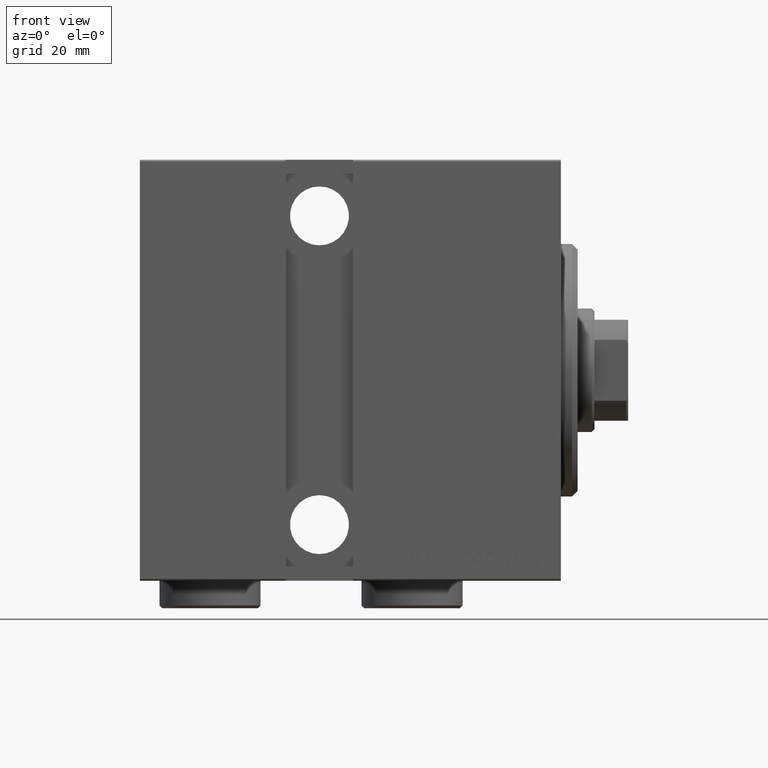
[diagram: clean part render]
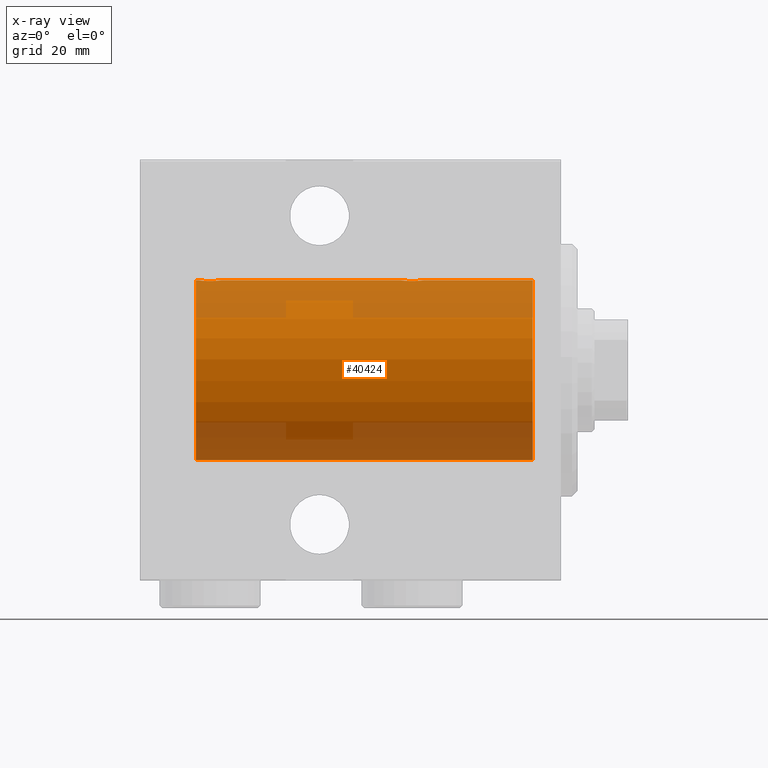
[diagram: x-ray — body ghosted, one internal face saturated and labeled with its STEP entity id]
A machine part, front view, then the same camera in x-ray: the body is ghosted and one INTERNAL B-rep face — a face not visible from any outside direction — is saturated and labeled: STEP entity #40424.
In plain terms, the highlighted cylindrical surface (partial cylindrical patch) has radius 16 mm, axis along (1, 0, -0).
Its self-contained STEP definition (entity closure, byte-faithful):
#151 = CARTESIAN_POINT ( 'NONE',  ( 24.60216273501104567, 0.6445079780200539954, 15.98747331501412461 ) ) ;
#580 = CARTESIAN_POINT ( 'NONE',  ( 27.50659181559580446, 1.747750603376297729, 15.90457341008072056 ) ) ;
#686 = CARTESIAN_POINT ( 'NONE',  ( 65.00000000000000000, 0.000000000000000000, 16.00000000000000000 ) ) ;
#848 = EDGE_CURVE ( 'NONE', #39148, #14516, #31698, .T. ) ;
#1040 = VERTEX_POINT ( 'NONE', #6923 ) ;
#1169 = CARTESIAN_POINT ( 'NONE',  ( 64.49999999999998579, 3.415560487804343463E-15, 16.00000000000000000 ) ) ;
#1614 = CARTESIAN_POINT ( 'NONE',  ( 63.50659181559576183, 1.747750603376297951, 15.90457341008072056 ) ) ;
#2096 = ORIENTED_EDGE ( 'NONE', *, *, #5139, .T. ) ;
#2278 = DIRECTION ( 'NONE',  ( -1.000000000000000000, 0.000000000000000000, 0.000000000000000000 ) ) ;
#2891 = EDGE_LOOP ( 'NONE', ( #19037, #23849, #5773, #2096, #36145, #14909, #41132, #15243 ) ) ;
#3045 = CARTESIAN_POINT ( 'NONE',  ( 24.90998471899876066, 1.220169175415113827, 15.95377581882983442 ) ) ;
#3907 = CARTESIAN_POINT ( 'NONE',  ( 28.43611326682063378, 0.5181437283162068086, 15.99211983514074298 ) ) ;
#4500 = CARTESIAN_POINT ( 'NONE',  ( 62.23748416992101085, 1.987008272775779627, 15.87616016863256618 ) ) ;
#4725 = CARTESIAN_POINT ( 'NONE',  ( 64.39758870055591444, 0.6452446332038123122, 15.98744362947834574 ) ) ;
#4854 = DIRECTION ( 'NONE',  ( -1.000000000000000000, -0.000000000000000000, -0.000000000000000000 ) ) ;
#4946 = CARTESIAN_POINT ( 'NONE',  ( 61.49688752964961935, 1.735145127817733002, 15.90580292899658410 ) ) ;
#5139 = EDGE_CURVE ( 'NONE', #28806, #25898, #39142, .T. ) ;
#5172 = CARTESIAN_POINT ( 'NONE',  ( 65.00000000000000000, 0.000000000000000000, 0.000000000000000000 ) ) ;
#5294 = DIRECTION ( 'NONE',  ( -1.000000000000000000, -0.000000000000000000, -0.000000000000000000 ) ) ;
#5456 = AXIS2_PLACEMENT_3D ( 'NONE', #5172, #2278, #11626 ) ;
#5578 = CARTESIAN_POINT ( 'NONE',  ( 65.00000000000000000, 0.000000000000000000, 16.00000000000000000 ) ) ;
#5773 = ORIENTED_EDGE ( 'NONE', *, *, #14887, .T. ) ;
#6387 = CARTESIAN_POINT ( 'NONE',  ( 25.98086902289887234, 1.935876924222074358, 15.88247600692093187 ) ) ;
#6608 = CARTESIAN_POINT ( 'NONE',  ( 25.28032342557723311, 1.590393755196000347, 15.92092783521424337 ) ) ;
#6817 = CARTESIAN_POINT ( 'NONE',  ( 28.49999999999998579, 0.1322838750249257511, 16.00000000000000000 ) ) ;
#6923 = CARTESIAN_POINT ( 'NONE',  ( 4.999999999999997335, 1.959434878635765131E-15, -16.00000000000000000 ) ) ;
#7038 = CARTESIAN_POINT ( 'NONE',  ( 24.76517329325045225, 1.003662148334361959, 15.96885838080210007 ) ) ;
#7143 = CIRCLE ( 'NONE', #32014, 16.00000000000000000 ) ;
#7399 = CARTESIAN_POINT ( 'NONE',  ( 60.56430947073870641, 0.5198215460038694280, 15.99206840425679310 ) ) ;
#8286 = CARTESIAN_POINT ( 'NONE',  ( 61.98086902289887945, 1.935876924222067252, 15.88247600692093187 ) ) ;
#8870 = CARTESIAN_POINT ( 'NONE',  ( 4.999999999999997335, 0.000000000000000000, 16.00000000000000000 ) ) ;
#10155 = CARTESIAN_POINT ( 'NONE',  ( 28.09051504852099512, 1.219564485341767091, 15.95382484008323409 ) ) ;
#10370 = CARTESIAN_POINT ( 'NONE',  ( 27.72956111739783580, 1.598790766515148620, 15.92099550861380131 ) ) ;
#10591 = CARTESIAN_POINT ( 'NONE',  ( 28.00610712468246177, 1.322357532253821910, 15.94553003295878391 ) ) ;
#10806 = CARTESIAN_POINT ( 'NONE',  ( 26.37014691649501685, 2.000047931387139322, 15.87450182760079187 ) ) ;
#10956 = CARTESIAN_POINT ( 'NONE',  ( 61.61382242942730159, 1.797743958659246966, 15.89876304682111652 ) ) ;
#11173 = CARTESIAN_POINT ( 'NONE',  ( 64.23568098498259360, 1.002241074716276881, 15.96895041604535770 ) ) ;
#11395 = CARTESIAN_POINT ( 'NONE',  ( 63.02531756459401890, 1.947280337074155376, 15.88137861827787489 ) ) ;
#11507 = EDGE_CURVE ( 'NONE', #16224, #16146, #14929, .T. ) ;
#11626 = DIRECTION ( 'NONE',  ( 0.000000000000000000, 0.000000000000000000, 1.000000000000000000 ) ) ;
#11627 = CARTESIAN_POINT ( 'NONE',  ( 64.29713414748218270, 0.8874076679346717400, 15.97583181162460697 ) ) ;
#12301 = VECTOR ( 'NONE', #19172, 1000.000000000000000 ) ;
#13274 = CARTESIAN_POINT ( 'NONE',  ( 28.39758870055591444, 0.6452446332038146437, 15.98744362947834574 ) ) ;
#13470 = EDGE_CURVE ( 'NONE', #14516, #1040, #24097, .T. ) ;
#13493 = CARTESIAN_POINT ( 'NONE',  ( 26.76191462762254858, 1.999903730784154066, 15.87451999516785861 ) ) ;
#13715 = CARTESIAN_POINT ( 'NONE',  ( 24.49999999999999289, 0.1305944228192297274, 15.99999999999999645 ) ) ;
#14511 = CARTESIAN_POINT ( 'NONE',  ( 64.49999999999997158, 0.1322838750249256956, 16.00000000000000000 ) ) ;
#14516 = VERTEX_POINT ( 'NONE', #40596 ) ;
#14887 = EDGE_CURVE ( 'NONE', #39148, #28806, #36048, .T. ) ;
#14909 = ORIENTED_EDGE ( 'NONE', *, *, #11507, .T. ) ;
#14929 = B_SPLINE_CURVE_WITH_KNOTS ( 'NONE', 3,
 ( #30186, #6817, #17059, #3907, #13274, #20411, #41041, #10155, #10591, #10370, #580, #16620, #13493, #10806, #36841, #6387, #27082, #26868, #24178, #6608, #19970, #17496, #3045, #7038, #37492, #151, #23750, #43722, #13715, #23965 ),
 .UNSPECIFIED., .F., .F.,
 ( 4, 2, 2, 2, 2, 2, 2, 2, 2, 2, 2, 2, 2, 2, 4 ),
 ( 1.745049934674283425E-18, 0.0003911894522871204737, 0.0007823789045742392126, 0.001173568356861357789, 0.001564757809148476691, 0.002347136713722706037, 0.003129515618296936034, 0.003520705070584051466, 0.003911894522871166464, 0.004303083975158282330, 0.004694273427445396461, 0.005085462879732512327, 0.005476652332019627326, 0.005867841784306743191, 0.006259031236593858190 ),
 .UNSPECIFIED. ) ;
#15196 = CARTESIAN_POINT ( 'NONE',  ( 63.72956111739784291, 1.598790766515136408, 15.92099550861381019 ) ) ;
#15243 = ORIENTED_EDGE ( 'NONE', *, *, #41150, .T. ) ;
#15764 = CARTESIAN_POINT ( 'NONE',  ( 65.00000000000000000, 0.000000000000000000, 16.00000000000000000 ) ) ;
#16146 = VERTEX_POINT ( 'NONE', #31282 ) ;
#16224 = VERTEX_POINT ( 'NONE', #27742 ) ;
#16620 = CARTESIAN_POINT ( 'NONE',  ( 27.02531756459403667, 1.947280337074160927, 15.88137861827786779 ) ) ;
#17059 = CARTESIAN_POINT ( 'NONE',  ( 28.48700524008413382, 0.2623312429553315561, 15.99836091803360105 ) ) ;
#17122 = CARTESIAN_POINT ( 'NONE',  ( 60.50000000000000711, -2.739595594696790848E-23, 16.00000000000000000 ) ) ;
#17496 = CARTESIAN_POINT ( 'NONE',  ( 24.99262839687570903, 1.321075116345881595, 15.94564302722883298 ) ) ;
#17811 = EDGE_CURVE ( 'NONE', #25898, #16224, #35091, .T. ) ;
#18087 = CARTESIAN_POINT ( 'NONE',  ( 61.28032342557722245, 1.590393755195991909, 15.92092783521423272 ) ) ;
#18220 = CARTESIAN_POINT ( 'NONE',  ( 65.00000000000000000, 0.000000000000000000, 16.00000000000000000 ) ) ;
#18540 = CARTESIAN_POINT ( 'NONE',  ( 60.90998471899877131, 1.220169175415108942, 15.95377581882983797 ) ) ;
#19037 = ORIENTED_EDGE ( 'NONE', *, *, #13470, .F. ) ;
#19172 = DIRECTION ( 'NONE',  ( -1.000000000000000000, -0.000000000000000000, -0.000000000000000000 ) ) ;
#19723 = DIRECTION ( 'NONE',  ( -1.000000000000000000, -0.000000000000000000, -0.000000000000000000 ) ) ;
#19970 = CARTESIAN_POINT ( 'NONE',  ( 25.17924175171067702, 1.507649250492130388, 15.92908549642226745 ) ) ;
#20411 = CARTESIAN_POINT ( 'NONE',  ( 28.29713414748220046, 0.8874076679346754037, 15.97583181162460697 ) ) ;
#20903 = LINE ( 'NONE', #18220, #22493 ) ;
#20988 = CARTESIAN_POINT ( 'NONE',  ( 60.50000000000000711, -2.739595594696790848E-23, 16.00000000000000000 ) ) ;
#21429 = CARTESIAN_POINT ( 'NONE',  ( 64.48700524008410184, 0.2623312429553320002, 15.99836091803360105 ) ) ;
#22256 = VECTOR ( 'NONE', #26998, 1000.000000000000000 ) ;
#22493 = VECTOR ( 'NONE', #4854, 1000.000000000000000 ) ;
#23054 = CYLINDRICAL_SURFACE ( 'NONE', #26322, 16.00000000000000000 ) ;
#23167 = DIRECTION ( 'NONE',  ( -1.000000000000000000, 0.000000000000000000, 0.000000000000000000 ) ) ;
#23390 = DIRECTION ( 'NONE',  ( 0.000000000000000000, 0.000000000000000000, 1.000000000000000000 ) ) ;
#23538 = CARTESIAN_POINT ( 'NONE',  ( 64.49999999999998579, 3.415560487804343463E-15, 16.00000000000000000 ) ) ;
#23750 = CARTESIAN_POINT ( 'NONE',  ( 24.56430947073869930, 0.5198215460038717595, 15.99206840425678955 ) ) ;
#23800 = VECTOR ( 'NONE', #5294, 1000.000000000000000 ) ;
#23849 = ORIENTED_EDGE ( 'NONE', *, *, #848, .F. ) ;
#23965 = CARTESIAN_POINT ( 'NONE',  ( 24.50000000000000000, -2.739635037742051899E-23, 16.00000000000000000 ) ) ;
#24047 = CARTESIAN_POINT ( 'NONE',  ( 4.999999999999997335, 0.000000000000000000, 0.000000000000000000 ) ) ;
#24097 = LINE ( 'NONE', #30755, #22256 ) ;
#24178 = CARTESIAN_POINT ( 'NONE',  ( 25.49688752964961225, 1.735145127817741439, 15.90580292899658410 ) ) ;
#24765 = CARTESIAN_POINT ( 'NONE',  ( 62.37014691649500264, 2.000047931387129552, 15.87450182760079898 ) ) ;
#24989 = CARTESIAN_POINT ( 'NONE',  ( 60.50000000000001421, 0.1305944228192293111, 16.00000000000000000 ) ) ;
#25212 = CARTESIAN_POINT ( 'NONE',  ( 64.00610712468245822, 1.322357532253809476, 15.94553003295877680 ) ) ;
#25898 = VERTEX_POINT ( 'NONE', #17122 ) ;
#26322 = AXIS2_PLACEMENT_3D ( 'NONE', #42609, #19723, #42829 ) ;
#26868 = CARTESIAN_POINT ( 'NONE',  ( 25.61382242942729803, 1.797743958659254515, 15.89876304682112007 ) ) ;
#26917 = VERTEX_POINT ( 'NONE', #8870 ) ;
#26998 = DIRECTION ( 'NONE',  ( -1.000000000000000000, -0.000000000000000000, -0.000000000000000000 ) ) ;
#27082 = CARTESIAN_POINT ( 'NONE',  ( 25.85613031966986952, 1.898058445420883311, 15.88709929148890510 ) ) ;
#27742 = CARTESIAN_POINT ( 'NONE',  ( 28.49999999999999645, -1.207828523974853969E-15, 16.00000000000000000 ) ) ;
#28323 = CARTESIAN_POINT ( 'NONE',  ( 64.09051504852095604, 1.219564485341761317, 15.95382484008322344 ) ) ;
#28605 = EDGE_CURVE ( 'NONE', #16146, #26917, #20903, .T. ) ;
#28769 = CARTESIAN_POINT ( 'NONE',  ( 60.76517329325045580, 1.003662148334357296, 15.96885838080210362 ) ) ;
#28806 = VERTEX_POINT ( 'NONE', #23538 ) ;
#29303 = FACE_OUTER_BOUND ( 'NONE', #2891, .T. ) ;
#30186 = CARTESIAN_POINT ( 'NONE',  ( 28.49999999999999645, -1.207828523974853969E-15, 16.00000000000000000 ) ) ;
#30755 = CARTESIAN_POINT ( 'NONE',  ( 65.00000000000000000, 1.959434878635765131E-15, -16.00000000000000000 ) ) ;
#31282 = CARTESIAN_POINT ( 'NONE',  ( 24.50000000000000000, -2.739635037742051899E-23, 16.00000000000000000 ) ) ;
#31632 = CARTESIAN_POINT ( 'NONE',  ( 60.60216273501104212, 0.6445079780200505537, 15.98747331501412461 ) ) ;
#31698 = CIRCLE ( 'NONE', #5456, 16.00000000000000000 ) ;
#32014 = AXIS2_PLACEMENT_3D ( 'NONE', #24047, #23167, #23390 ) ;
#34526 = CARTESIAN_POINT ( 'NONE',  ( 60.70250071394959690, 0.8866640484200044581, 15.97587307151817804 ) ) ;
#35091 = LINE ( 'NONE', #15764, #23800 ) ;
#35183 = CARTESIAN_POINT ( 'NONE',  ( 64.43611326682059826, 0.5181437283162059204, 15.99211983514074653 ) ) ;
#35416 = CARTESIAN_POINT ( 'NONE',  ( 61.85613031966985886, 1.898058445420874651, 15.88709929148890687 ) ) ;
#36048 = LINE ( 'NONE', #5578, #12301 ) ;
#36145 = ORIENTED_EDGE ( 'NONE', *, *, #17811, .T. ) ;
#36841 = CARTESIAN_POINT ( 'NONE',  ( 26.23748416992101085, 1.987008272775788731, 15.87616016863256618 ) ) ;
#37492 = CARTESIAN_POINT ( 'NONE',  ( 24.70250071394960045, 0.8866640484200088990, 15.97587307151817448 ) ) ;
#37853 = CARTESIAN_POINT ( 'NONE',  ( 61.17924175171067702, 1.507649250492122839, 15.92908549642226745 ) ) ;
#38064 = CARTESIAN_POINT ( 'NONE',  ( 60.99262839687573745, 1.321075116345875378, 15.94564302722883653 ) ) ;
#39142 = B_SPLINE_CURVE_WITH_KNOTS ( 'NONE', 3,
 ( #1169, #14511, #21429, #35183, #4725, #11627, #11173, #28323, #25212, #15196, #1614, #11395, #41407, #24765, #4500, #8286, #35416, #10956, #4946, #18087, #37853, #38064, #18540, #28769, #34526, #31632, #7399, #41853, #24989, #20988 ),
 .UNSPECIFIED., .F., .F.,
 ( 4, 2, 2, 2, 2, 2, 2, 2, 2, 2, 2, 2, 2, 2, 4 ),
 ( 3.318791181215196379E-18, 0.0003911894522871183053, 0.0007823789045742333579, 0.001173568356861347814, 0.001564757809148462596, 0.002347136713722691292, 0.003129515618296919988, 0.003520705070584034552, 0.003911894522871149117, 0.004303083975158263248, 0.004694273427445377379, 0.005085462879732491510, 0.005476652332019605642, 0.005867841784306719773, 0.006259031236593833904 ),
 .UNSPECIFIED. ) ;
#39148 = VERTEX_POINT ( 'NONE', #686 ) ;
#40424 = ADVANCED_FACE ( 'NONE', ( #29303 ), #23054, .F. ) ;
#40596 = CARTESIAN_POINT ( 'NONE',  ( 65.00000000000000000, 1.959434878635765131E-15, -16.00000000000000000 ) ) ;
#41041 = CARTESIAN_POINT ( 'NONE',  ( 28.23568098498261492, 1.002241074716280655, 15.96895041604536480 ) ) ;
#41132 = ORIENTED_EDGE ( 'NONE', *, *, #28605, .T. ) ;
#41150 = EDGE_CURVE ( 'NONE', #26917, #1040, #7143, .T. ) ;
#41407 = CARTESIAN_POINT ( 'NONE',  ( 62.76191462762252371, 1.999903730784143630, 15.87451999516785506 ) ) ;
#41853 = CARTESIAN_POINT ( 'NONE',  ( 60.51309075167873885, 0.2632563459770802528, 15.99834873924246104 ) ) ;
#42609 = CARTESIAN_POINT ( 'NONE',  ( 65.00000000000000000, 0.000000000000000000, 0.000000000000000000 ) ) ;
#42829 = DIRECTION ( 'NONE',  ( 0.000000000000000000, 0.000000000000000000, 1.000000000000000000 ) ) ;
#43722 = CARTESIAN_POINT ( 'NONE',  ( 24.51309075167874596, 0.2632563459770819736, 15.99834873924246459 ) ) ;